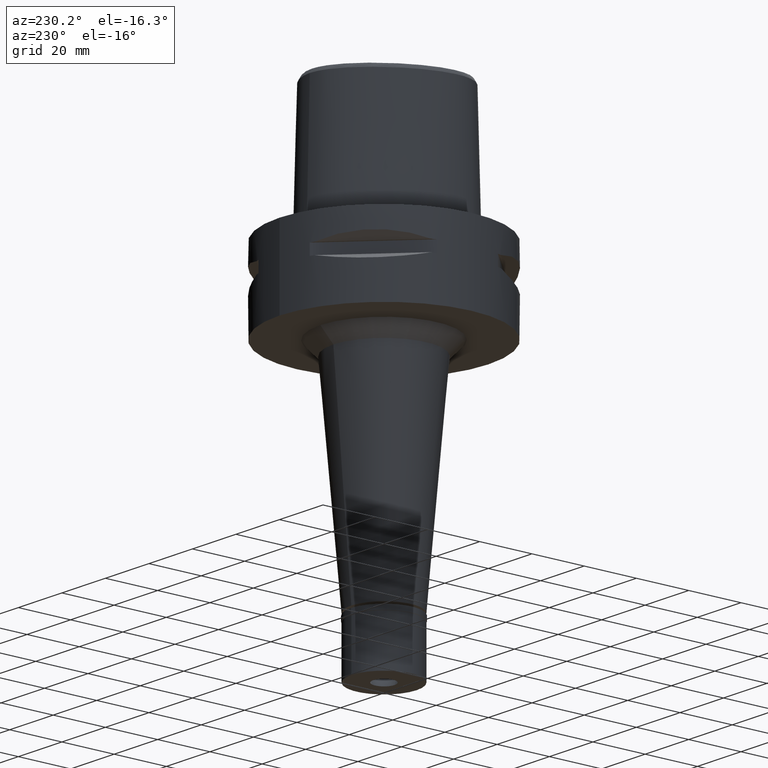
[diagram: clean part render]
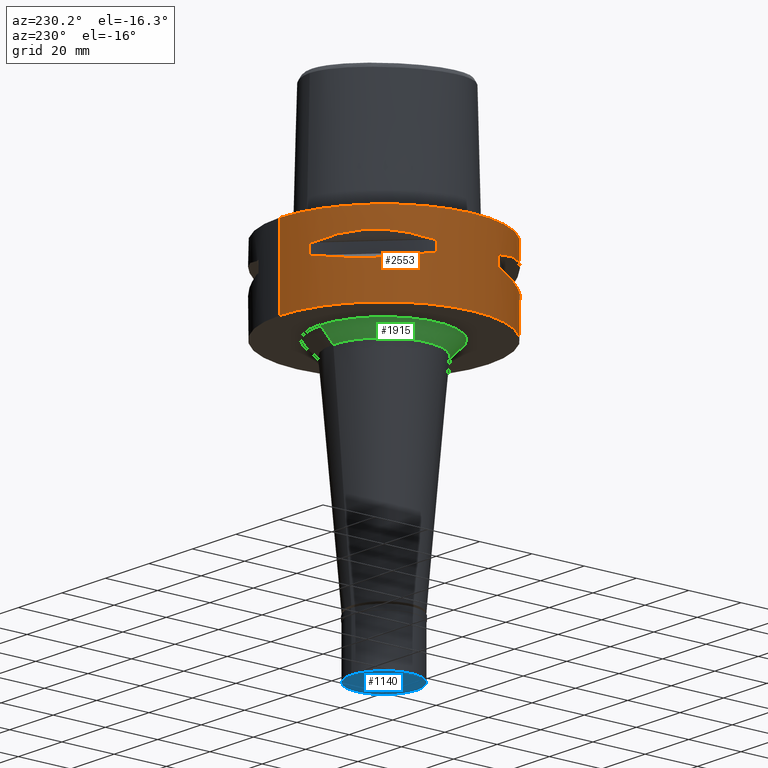
[diagram: same view with three faces highlighted in distinct colors, each labeled with its STEP entity id]
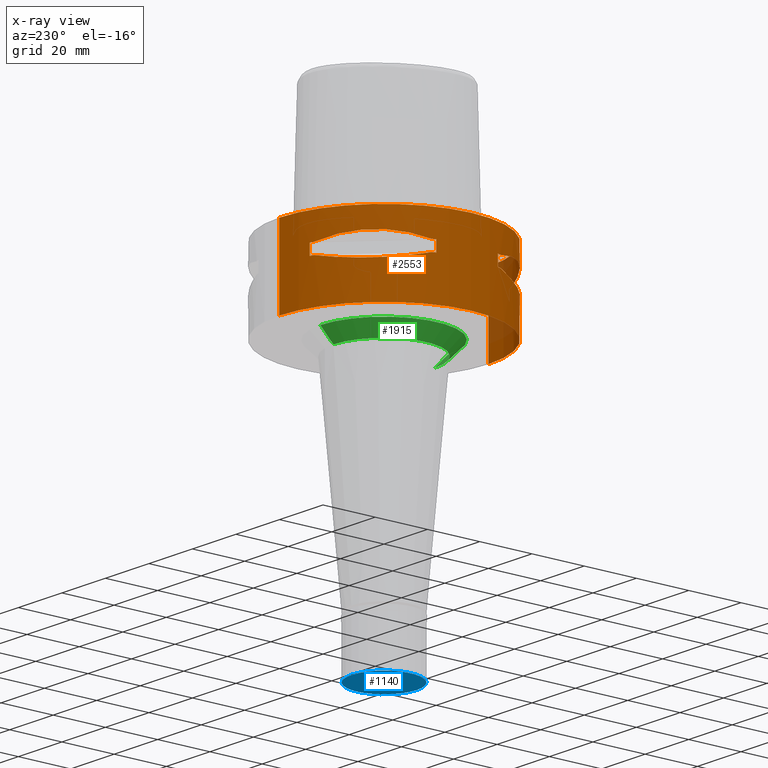
[diagram: x-ray of the same camera — body ghosted, the three highlighted faces saturated]
A machine part, auxiliary view with three faces highlighted in distinct colors.
The next image is the same camera in x-ray (body ghosted, the three faces saturated) — at least one of them is partly hidden behind the body in this view.
Their STEP definitions:

[orange] entity #2553 — the highlighted cylindrical surface (partial cylindrical patch) has radius 40 mm, axis along (0, 0, -1).
#49 = DIRECTION ( 'NONE',  ( -0.2940084000702865574, -0.9558028356769561196, 0.0000000000000000000 ) ) ;
#56 = CIRCLE ( 'NONE', #1045, 39.99999999999999289 ) ;
#128 = EDGE_CURVE ( 'NONE', #4820, #2496, #5047, .T. ) ;
#131 = CARTESIAN_POINT ( 'NONE',  ( -20.91613153242406398, 34.09685321779756606, -15.69507322892952139 ) ) ;
#181 = CARTESIAN_POINT ( 'NONE',  ( -21.40429668490322612, 33.79139713908578102, -15.76966389594729101 ) ) ;
#219 = EDGE_CURVE ( 'NONE', #2620, #2561, #2224, .T. ) ;
#231 = CARTESIAN_POINT ( 'NONE',  ( -36.74073341982093410, -16.10435486228974611, -9.189966798081965038 ) ) ;
#268 = CARTESIAN_POINT ( 'NONE',  ( -34.44518065739791268, -20.34261333236362645, -15.60313948594344780 ) ) ;
#286 = EDGE_CURVE ( 'NONE', #2620, #471, #3312, .T. ) ;
#378 = VECTOR ( 'NONE', #3371, 1000.000000000000000 ) ;
#409 = EDGE_CURVE ( 'NONE', #2671, #2836, #56, .T. ) ;
#460 = CARTESIAN_POINT ( 'NONE',  ( -37.74622163926999718, 13.23717311056000057, -14.05000000000000071 ) ) ;
#467 = CARTESIAN_POINT ( 'NONE',  ( -11.76033600280999991, -38.23211342708000160, -14.05000000000000071 ) ) ;
#471 = VERTEX_POINT ( 'NONE', #2529 ) ;
#478 = ORIENTED_EDGE ( 'NONE', *, *, #128, .F. ) ;
#486 = CARTESIAN_POINT ( 'NONE',  ( -38.23211342708000160, 11.76033600280999991, -14.05000000000000071 ) ) ;
#535 = CARTESIAN_POINT ( 'NONE',  ( -21.46607685731531490, 33.75216276490056089, -15.77886817953056564 ) ) ;
#544 = DIRECTION ( 'NONE',  ( 0.0000000000000000000, 0.0000000000000000000, 1.000000000000000000 ) ) ;
#563 = CARTESIAN_POINT ( 'NONE',  ( -33.56701934068217952, 21.75464223249340634, -15.82109001420632310 ) ) ;
#572 = CARTESIAN_POINT ( 'NONE',  ( -33.91944728533206188, -21.20128033780140697, -15.73905907260549064 ) ) ;
#584 = CARTESIAN_POINT ( 'NONE',  ( -38.23211342708000160, 11.76033600280999991, -9.950000000000001066 ) ) ;
#632 = VECTOR ( 'NONE', #4646, 1000.000000000000000 ) ;
#646 = CARTESIAN_POINT ( 'NONE',  ( -35.11589783529782949, -19.18269457495653185, -15.40342377741739988 ) ) ;
#656 = B_SPLINE_CURVE_WITH_KNOTS ( 'NONE', 3,
 ( #3440, #231, #5039, #1501, #3028, #3050, #1895, #4691, #2583, #1790 ),
 .UNSPECIFIED., .F., .F.,
 ( 4, 2, 2, 2, 4 ),
 ( 0.0000000000000000000, 0.2500000000000000000, 0.5000000000000000000, 0.7500000000000000000, 1.000000000000000000 ),
 .UNSPECIFIED. ) ;
#668 = CARTESIAN_POINT ( 'NONE',  ( -16.14402792110914930, -36.72682052670094777, -14.82054974552934468 ) ) ;
#677 = ORIENTED_EDGE ( 'NONE', *, *, #3827, .F. ) ;
#691 = DIRECTION ( 'NONE',  ( 0.0000000000000000000, 0.0000000000000000000, -1.000000000000000000 ) ) ;
#700 = VERTEX_POINT ( 'NONE', #2208 ) ;
#710 = CARTESIAN_POINT ( 'NONE',  ( 0.0000000000000000000, 1.303514053011999969E-14, -14.05000000000000071 ) ) ;
#724 = CARTESIAN_POINT ( 'NONE',  ( 0.0000000000000000000, 1.303514053011999969E-14, -14.05000000000000071 ) ) ;
#735 = DIRECTION ( 'NONE',  ( 0.0000000000000000000, 0.0000000000000000000, 1.000000000000000000 ) ) ;
#747 = CARTESIAN_POINT ( 'NONE',  ( -18.89342208872277595, -35.39137327286401558, -15.39779115588540925 ) ) ;
#758 = VERTEX_POINT ( 'NONE', #1614 ) ;
#761 = EDGE_CURVE ( 'NONE', #758, #3747, #2645, .T. ) ;
#792 = AXIS2_PLACEMENT_3D ( 'NONE', #4313, #735, #2338 ) ;
#832 = ORIENTED_EDGE ( 'NONE', *, *, #3941, .T. ) ;
#845 = CARTESIAN_POINT ( 'NONE',  ( -25.62819065485258463, -30.77249687755037399, -16.26160051742709101 ) ) ;
#852 = DIRECTION ( 'NONE',  ( -0.3309293277639132058, -0.9436555409818374596, 0.0000000000000000000 ) ) ;
#899 = CARTESIAN_POINT ( 'NONE',  ( -11.76033600280999991, -38.23211342708000160, -9.950000000000001066 ) ) ;
#925 = CARTESIAN_POINT ( 'NONE',  ( 0.0000000000000000000, 1.303514053011999969E-14, 0.0000000000000000000 ) ) ;
#926 = B_SPLINE_CURVE_WITH_KNOTS ( 'NONE', 3,
 ( #4459, #4493, #3704, #1721, #2533, #131, #1329, #2509, #181, #4520, #535, #4045, #1745, #3343, #4938, #4543, #949, #4147, #563, #1771, #3367, #1376, #3267, #2974, #4571, #460 ),
 .UNSPECIFIED., .F., .F.,
 ( 4, 1, 1, 1, 1, 1, 1, 2, 2, 2, 1, 1, 1, 1, 1, 1, 2, 2, 4 ),
 ( 0.0000000000000000000, 0.1250000000000191513, 0.1875000000000286160, 0.2187500000000333344, 0.2343750000000358602, 0.2421875000000370537, 0.2460937500000373590, 0.2480468750000373868, 0.2500000000000374145, 0.5000000000000354161, 0.6250000000000345279, 0.6875000000000339728, 0.7187500000000336398, 0.7343750000000335287, 0.7421875000000334177, 0.7460937500000334177, 0.7480468750000331957, 0.7500000000000330846, 1.000000000000000000 ),
 .UNSPECIFIED. ) ;
#949 = CARTESIAN_POINT ( 'NONE',  ( -33.03835700910098438, 22.55421454657008340, -15.93168855142969598 ) ) ;
#977 = EDGE_LOOP ( 'NONE', ( #5075, #677, #4575, #1574, #1623, #4554, #2614, #3524 ) ) ;
#980 = CARTESIAN_POINT ( 'NONE',  ( -11.76033600280999991, 38.23211342708000160, -14.05000000000000071 ) ) ;
#983 = CARTESIAN_POINT ( 'NONE',  ( -33.76566745674986691, -21.44484052678344455, -15.77571175125594394 ) ) ;
#1034 = CARTESIAN_POINT ( 'NONE',  ( -36.35358138588213706, -16.81132763103370209, -14.94059947015962386 ) ) ;
#1045 = AXIS2_PLACEMENT_3D ( 'NONE', #1322, #2157, #3748 ) ;
#1076 = CARTESIAN_POINT ( 'NONE',  ( 0.0000000000000000000, 1.303514053011999969E-14, 6.440000000000000391 ) ) ;
#1087 = ORIENTED_EDGE ( 'NONE', *, *, #3386, .T. ) ;
#1096 = LINE ( 'NONE', #3873, #1633 ) ;
#1141 = CARTESIAN_POINT ( 'NONE',  ( -32.16767032366980317, -23.95303639242290217, -16.14729882780574499 ) ) ;
#1160 = B_SPLINE_CURVE_WITH_KNOTS ( 'NONE', 3,
 ( #1488, #2663, #3087, #4583, #4680, #2203, #3843, #3892, #1859, #4611 ),
 .UNSPECIFIED., .F., .F.,
 ( 4, 2, 2, 2, 4 ),
 ( 0.0000000000000000000, 0.2500000000000001110, 0.5000000000000002220, 0.7500000000000001110, 1.000000000000000000 ),
 .UNSPECIFIED. ) ;
#1162 = CIRCLE ( 'NONE', #4510, 40.00000000000000000 ) ;
#1321 = ORIENTED_EDGE ( 'NONE', *, *, #4689, .T. ) ;
#1322 = CARTESIAN_POINT ( 'NONE',  ( 0.0000000000000000000, 1.303514053011999969E-14, -9.950000000000001066 ) ) ;
#1329 = CARTESIAN_POINT ( 'NONE',  ( -21.20128033779905863, 33.91944728533289322, -15.73905907260483872 ) ) ;
#1359 = CARTESIAN_POINT ( 'NONE',  ( 0.0000000000000000000, 40.00000000000000000, 0.0000000000000000000 ) ) ;
#1369 = VERTEX_POINT ( 'NONE', #3679 ) ;
#1376 = CARTESIAN_POINT ( 'NONE',  ( -33.71529052282350136, 21.52391145898932123, -15.78742602700011410 ) ) ;
#1385 = CARTESIAN_POINT ( 'NONE',  ( -33.82993376593436352, -21.34345216682292090, -15.76055673748811792 ) ) ;
#1407 = AXIS2_PLACEMENT_3D ( 'NONE', #710, #2651, #5113 ) ;
#1452 = CARTESIAN_POINT ( 'NONE',  ( -13.23717311056000057, -37.74622163926999718, -14.05000000000000071 ) ) ;
#1483 = DIRECTION ( 'NONE',  ( -0.3309293277639132058, 0.9436555409818374596, 0.0000000000000000000 ) ) ;
#1488 = CARTESIAN_POINT ( 'NONE',  ( -13.23717311056000057, 37.74622163926999718, -9.950000000002001244 ) ) ;
#1501 = CARTESIAN_POINT ( 'NONE',  ( -32.22577213857958611, -23.88355431037092913, -7.859897272571259919 ) ) ;
#1510 = ORIENTED_EDGE ( 'NONE', *, *, #2187, .T. ) ;
#1553 = DIRECTION ( 'NONE',  ( 0.0000000000000000000, 0.0000000000000000000, -1.000000000000000000 ) ) ;
#1574 = ORIENTED_EDGE ( 'NONE', *, *, #219, .F. ) ;
#1614 = CARTESIAN_POINT ( 'NONE',  ( -13.23717311056000057, -37.74622163926999718, -9.950000000002001244 ) ) ;
#1623 = ORIENTED_EDGE ( 'NONE', *, *, #286, .T. ) ;
#1624 = EDGE_CURVE ( 'NONE', #2671, #471, #3125, .T. ) ;
#1633 = VECTOR ( 'NONE', #4287, 1000.000000000000000 ) ;
#1669 = CARTESIAN_POINT ( 'NONE',  ( -30.34851826271897224, -26.21995747454407422, -16.33009976522122741 ) ) ;
#1690 = ORIENTED_EDGE ( 'NONE', *, *, #2243, .F. ) ;
#1721 = CARTESIAN_POINT ( 'NONE',  ( -19.18269457494219310, 35.11589783530285303, -15.40342377741356117 ) ) ;
#1745 = CARTESIAN_POINT ( 'NONE',  ( -26.21995747455951431, 30.34851826269486708, -16.33009976521767115 ) ) ;
#1771 = CARTESIAN_POINT ( 'NONE',  ( -33.65365962422809787, 21.62017158009728846, -15.80156334789097095 ) ) ;
#1790 = CARTESIAN_POINT ( 'NONE',  ( -13.23717311056000057, -37.74622163926999718, -9.950000000002001244 ) ) ;
#1800 = DIRECTION ( 'NONE',  ( 0.0000000000000000000, 0.0000000000000000000, -1.000000000000000000 ) ) ;
#1847 = FACE_BOUND ( 'NONE', #4700, .T. ) ;
#1859 = CARTESIAN_POINT ( 'NONE',  ( -36.74070924257178206, 16.10442380448742838, -9.189948522868261804 ) ) ;
#1888 = ORIENTED_EDGE ( 'NONE', *, *, #2905, .T. ) ;
#1895 = CARTESIAN_POINT ( 'NONE',  ( -23.88364259920621890, -32.22570670470194187, -7.859869859750706844 ) ) ;
#1924 = CARTESIAN_POINT ( 'NONE',  ( 0.0000000000000000000, 1.303514053011999969E-14, -14.05000000000000071 ) ) ;
#1932 = CARTESIAN_POINT ( 'NONE',  ( -21.62017158009599527, -33.65365962422892210, -15.80156334789078265 ) ) ;
#2013 = ORIENTED_EDGE ( 'NONE', *, *, #2943, .T. ) ;
#2065 = VERTEX_POINT ( 'NONE', #3247 ) ;
#2134 = AXIS2_PLACEMENT_3D ( 'NONE', #2909, #4547, #4497 ) ;
#2136 = DIRECTION ( 'NONE',  ( 0.0000000000000000000, 0.0000000000000000000, -1.000000000000000000 ) ) ;
#2157 = DIRECTION ( 'NONE',  ( 0.0000000000000000000, 0.0000000000000000000, 1.000000000000000000 ) ) ;
#2177 = DIRECTION ( 'NONE',  ( 0.0000000000000000000, 0.0000000000000000000, 1.000000000000000000 ) ) ;
#2187 = EDGE_CURVE ( 'NONE', #2879, #4601, #3062, .T. ) ;
#2203 = CARTESIAN_POINT ( 'NONE',  ( -30.36058330527164983, 26.20795918965216842, -7.669863843587160446 ) ) ;
#2208 = CARTESIAN_POINT ( 'NONE',  ( -13.23717311056000057, 37.74622163926999718, -9.950000000002001244 ) ) ;
#2211 = FACE_OUTER_BOUND ( 'NONE', #2831, .T. ) ;
#2224 = B_SPLINE_CURVE_WITH_KNOTS ( 'NONE', 3,
 ( #3839, #3376, #1034, #646, #268, #2568, #572, #1385, #4581, #983, #4183, #1141, #1669, #3262, #845, #2744, #5120, #3497, #3887, #1932, #3131, #2295, #2353, #747, #668, #4326 ),
 .UNSPECIFIED., .F., .F.,
 ( 4, 1, 1, 1, 1, 1, 1, 2, 2, 2, 1, 1, 1, 1, 1, 1, 2, 2, 4 ),
 ( 0.0000000000000000000, 0.1249999999999758526, 0.1874999999999638900, 0.2187499999999580058, 0.2343749999999549805, 0.2421874999999535649, 0.2460937499999528988, 0.2480468749999527323, 0.2499999999999525380, 0.4999999999999500400, 0.6249999999999488187, 0.6874999999999481526, 0.7187499999999477085, 0.7343749999999477085, 0.7421874999999478195, 0.7460937499999479305, 0.7480468749999480416, 0.7499999999999482636, 1.000000000000000000 ),
 .UNSPECIFIED. ) ;
#2243 = EDGE_CURVE ( 'NONE', #3107, #1369, #4782, .T. ) ;
#2247 = LINE ( 'NONE', #1359, #3260 ) ;
#2295 = CARTESIAN_POINT ( 'NONE',  ( -21.52391145898895886, -33.71529052282375005, -15.78742602700008035 ) ) ;
#2338 = DIRECTION ( 'NONE',  ( 0.0000000000000000000, 1.000000000000000000, 0.0000000000000000000 ) ) ;
#2353 = CARTESIAN_POINT ( 'NONE',  ( -21.50560509406269460, -33.72697758561022852, -15.78472370821745407 ) ) ;
#2364 = EDGE_CURVE ( 'NONE', #2879, #4785, #926, .T. ) ;
#2478 = AXIS2_PLACEMENT_3D ( 'NONE', #1076, #4221, #4245 ) ;
#2496 = VERTEX_POINT ( 'NONE', #584 ) ;
#2509 = CARTESIAN_POINT ( 'NONE',  ( -21.34345216682169877, 33.82993376593478985, -15.76055673748776798 ) ) ;
#2529 = CARTESIAN_POINT ( 'NONE',  ( -38.23211342708000160, -11.76033600280999991, -14.05000000000000071 ) ) ;
#2532 = DIRECTION ( 'NONE',  ( 0.0000000000000000000, -1.000000000000000000, 0.0000000000000000000 ) ) ;
#2533 = CARTESIAN_POINT ( 'NONE',  ( -20.34261333235522784, 34.44518065740082591, -15.60313948594118116 ) ) ;
#2553 = ADVANCED_FACE ( 'NONE', ( #2211, #1847, #4173 ), #3800, .T. ) ;
#2561 = VERTEX_POINT ( 'NONE', #1452 ) ;
#2568 = CARTESIAN_POINT ( 'NONE',  ( -34.09685321779600997, -20.91613153242858658, -15.69507322893076662 ) ) ;
#2583 = CARTESIAN_POINT ( 'NONE',  ( -16.10442380448739286, -36.74070924257178916, -9.189948522868265357 ) ) ;
#2614 = ORIENTED_EDGE ( 'NONE', *, *, #409, .T. ) ;
#2620 = VERTEX_POINT ( 'NONE', #3829 ) ;
#2624 = EDGE_CURVE ( 'NONE', #2836, #758, #656, .T. ) ;
#2645 = CIRCLE ( 'NONE', #3069, 39.99999999999997868 ) ;
#2651 = DIRECTION ( 'NONE',  ( 0.0000000000000000000, 0.0000000000000000000, -1.000000000000000000 ) ) ;
#2663 = CARTESIAN_POINT ( 'NONE',  ( -16.10435486228978874, 36.74073341982094831, -9.189966798081963262 ) ) ;
#2671 = VERTEX_POINT ( 'NONE', #3853 ) ;
#2722 = VECTOR ( 'NONE', #544, 1000.000000000000000 ) ;
#2736 = EDGE_CURVE ( 'NONE', #4546, #2561, #2977, .T. ) ;
#2744 = CARTESIAN_POINT ( 'NONE',  ( -23.60097336452268024, -32.30995221952120744, -16.06165603927522056 ) ) ;
#2762 = CARTESIAN_POINT ( 'NONE',  ( -37.74622163926999718, -13.23717311056000057, -9.950000000002001244 ) ) ;
#2831 = EDGE_LOOP ( 'NONE', ( #832, #1690, #3765, #1321 ) ) ;
#2836 = VERTEX_POINT ( 'NONE', #2762 ) ;
#2841 = CARTESIAN_POINT ( 'NONE',  ( 0.0000000000000000000, 1.303514053011999969E-14, -9.950000000000001066 ) ) ;
#2879 = VERTEX_POINT ( 'NONE', #4431 ) ;
#2905 = EDGE_CURVE ( 'NONE', #2065, #2496, #3128, .T. ) ;
#2909 = CARTESIAN_POINT ( 'NONE',  ( 0.0000000000000000000, 1.303514053011999969E-14, -9.950000000000001066 ) ) ;
#2930 = CARTESIAN_POINT ( 'NONE',  ( -11.76033600280999991, 38.23211342708000160, -9.950000000000001066 ) ) ;
#2943 = EDGE_CURVE ( 'NONE', #700, #2065, #1160, .T. ) ;
#2974 = CARTESIAN_POINT ( 'NONE',  ( -35.39137327286383794, 18.89342208872325202, -15.39779115588552827 ) ) ;
#2977 = CIRCLE ( 'NONE', #3472, 39.99999999999999289 ) ;
#3028 = CARTESIAN_POINT ( 'NONE',  ( -30.36058330527162852, -26.20795918965216131, -7.669882118573520202 ) ) ;
#3050 = CARTESIAN_POINT ( 'NONE',  ( -26.20795918965215776, -30.36058330527162852, -7.669863843587160446 ) ) ;
#3062 = CIRCLE ( 'NONE', #3728, 39.99999999999997868 ) ;
#3069 = AXIS2_PLACEMENT_3D ( 'NONE', #4866, #3602, #852 ) ;
#3087 = CARTESIAN_POINT ( 'NONE',  ( -18.83173199174708046, 35.41596287855381320, -8.619939612211812374 ) ) ;
#3093 = VERTEX_POINT ( 'NONE', #4386 ) ;
#3107 = VERTEX_POINT ( 'NONE', #3110 ) ;
#3110 = CARTESIAN_POINT ( 'NONE',  ( 0.0000000000000000000, -40.00000000000000000, 0.0000000000000000000 ) ) ;
#3125 = LINE ( 'NONE', #4196, #632 ) ;
#3128 = CIRCLE ( 'NONE', #3806, 39.99999999999997868 ) ;
#3131 = CARTESIAN_POINT ( 'NONE',  ( -21.56243030661606852, -33.69065616467215563, -15.79309434609241869 ) ) ;
#3159 = DIRECTION ( 'NONE',  ( -0.9436555409818374596, -0.3309293277639132058, 0.0000000000000000000 ) ) ;
#3247 = CARTESIAN_POINT ( 'NONE',  ( -37.74622163926999718, 13.23717311056000057, -9.950000000002001244 ) ) ;
#3260 = VECTOR ( 'NONE', #1800, 1000.000000000000000 ) ;
#3262 = CARTESIAN_POINT ( 'NONE',  ( -27.25214773983183036, -29.31642813391925273, -16.33014064577127655 ) ) ;
#3267 = CARTESIAN_POINT ( 'NONE',  ( -33.72697758561022852, 21.50560509406268750, -15.78472370821743276 ) ) ;
#3306 = CIRCLE ( 'NONE', #2134, 39.99999999999999289 ) ;
#3312 = CIRCLE ( 'NONE', #3638, 39.99999999999997868 ) ;
#3343 = CARTESIAN_POINT ( 'NONE',  ( -29.31642813391150426, 27.25214773984385630, -16.33014064577301028 ) ) ;
#3367 = CARTESIAN_POINT ( 'NONE',  ( -33.69065616467168667, 21.56243030661679327, -15.79309434609251639 ) ) ;
#3371 = DIRECTION ( 'NONE',  ( 0.0000000000000000000, 0.0000000000000000000, -1.000000000000000000 ) ) ;
#3376 = CARTESIAN_POINT ( 'NONE',  ( -37.23659447744208251, -14.69039122919928531, -14.43521939501465035 ) ) ;
#3386 = EDGE_CURVE ( 'NONE', #4421, #700, #3306, .T. ) ;
#3399 = CARTESIAN_POINT ( 'NONE',  ( 0.0000000000000000000, 1.303514053011999969E-14, -14.05000000000000071 ) ) ;
#3440 = CARTESIAN_POINT ( 'NONE',  ( -37.74622163926999718, -13.23717311056000057, -9.950000000002001244 ) ) ;
#3472 = AXIS2_PLACEMENT_3D ( 'NONE', #1924, #1553, #49 ) ;
#3497 = CARTESIAN_POINT ( 'NONE',  ( -22.02254759438074316, -33.39247868354982529, -15.85920599531222308 ) ) ;
#3524 = ORIENTED_EDGE ( 'NONE', *, *, #2624, .T. ) ;
#3545 = DIRECTION ( 'NONE',  ( 0.0000000000000000000, 0.0000000000000000000, -1.000000000000000000 ) ) ;
#3557 = EDGE_CURVE ( 'NONE', #4421, #4601, #4602, .T. ) ;
#3560 = VECTOR ( 'NONE', #3545, 1000.000000000000000 ) ;
#3602 = DIRECTION ( 'NONE',  ( 0.0000000000000000000, 0.0000000000000000000, 1.000000000000000000 ) ) ;
#3638 = AXIS2_PLACEMENT_3D ( 'NONE', #724, #691, #3159 ) ;
#3668 = CIRCLE ( 'NONE', #1407, 39.99999999999999289 ) ;
#3679 = CARTESIAN_POINT ( 'NONE',  ( 0.0000000000000000000, -40.00000000000000000, -30.00000000000000000 ) ) ;
#3689 = CARTESIAN_POINT ( 'NONE',  ( 0.0000000000000000000, 40.00000000000000000, 0.0000000000000000000 ) ) ;
#3704 = CARTESIAN_POINT ( 'NONE',  ( -16.81132763101458849, 36.35358138588883037, -14.94059947015453105 ) ) ;
#3728 = AXIS2_PLACEMENT_3D ( 'NONE', #3399, #4998, #1483 ) ;
#3741 = CARTESIAN_POINT ( 'NONE',  ( -38.23211342708000160, 11.76033600280999991, -14.05000000000000071 ) ) ;
#3747 = VERTEX_POINT ( 'NONE', #899 ) ;
#3748 = DIRECTION ( 'NONE',  ( -0.9558028356769561196, -0.2940084000702865574, 0.0000000000000000000 ) ) ;
#3765 = ORIENTED_EDGE ( 'NONE', *, *, #4956, .T. ) ;
#3800 = CYLINDRICAL_SURFACE ( 'NONE', #2478, 40.00000000000000000 ) ;
#3806 = AXIS2_PLACEMENT_3D ( 'NONE', #2841, #2177, #4477 ) ;
#3827 = EDGE_CURVE ( 'NONE', #4546, #3747, #1096, .T. ) ;
#3829 = CARTESIAN_POINT ( 'NONE',  ( -37.74622163926999718, -13.23717311056000057, -14.05000000000000071 ) ) ;
#3833 = ORIENTED_EDGE ( 'NONE', *, *, #3557, .F. ) ;
#3839 = CARTESIAN_POINT ( 'NONE',  ( -37.74622163926999718, -13.23717311056000057, -14.05000000000000071 ) ) ;
#3843 = CARTESIAN_POINT ( 'NONE',  ( -32.22570670470196319, 23.88364259920621890, -7.859869859750705068 ) ) ;
#3853 = CARTESIAN_POINT ( 'NONE',  ( -38.23211342708000160, -11.76033600280999991, -9.950000000000001066 ) ) ;
#3873 = CARTESIAN_POINT ( 'NONE',  ( -11.76033600280999991, -38.23211342708000160, -14.05000000000000071 ) ) ;
#3887 = CARTESIAN_POINT ( 'NONE',  ( -21.75464223249087681, -33.56701934068381377, -15.82109001420596606 ) ) ;
#3892 = CARTESIAN_POINT ( 'NONE',  ( -35.41591128513821474, 18.83182902076458731, -8.619912199391256635 ) ) ;
#3941 = EDGE_CURVE ( 'NONE', #3093, #1369, #5139, .T. ) ;
#4044 = CARTESIAN_POINT ( 'NONE',  ( -37.74622163926999718, 13.23717311056000057, -14.05000000000000071 ) ) ;
#4045 = CARTESIAN_POINT ( 'NONE',  ( -23.95303639238277782, 32.16767032370128732, -16.14729882780219228 ) ) ;
#4147 = CARTESIAN_POINT ( 'NONE',  ( -33.39247868354666338, 22.02254759438567788, -15.85920599531292652 ) ) ;
#4173 = FACE_BOUND ( 'NONE', #977, .T. ) ;
#4183 = CARTESIAN_POINT ( 'NONE',  ( -33.75216276490080247, -21.46607685731505555, -15.77886817953058696 ) ) ;
#4196 = CARTESIAN_POINT ( 'NONE',  ( -38.23211342708000160, -11.76033600280999991, -9.950000000000001066 ) ) ;
#4221 = DIRECTION ( 'NONE',  ( 0.0000000000000000000, 0.0000000000000000000, -1.000000000000000000 ) ) ;
#4245 = DIRECTION ( 'NONE',  ( 0.0000000000000000000, -1.000000000000000000, 0.0000000000000000000 ) ) ;
#4287 = DIRECTION ( 'NONE',  ( 0.0000000000000000000, 0.0000000000000000000, 1.000000000000000000 ) ) ;
#4313 = CARTESIAN_POINT ( 'NONE',  ( 0.0000000000000000000, 1.303514053011999969E-14, -30.00000000000000000 ) ) ;
#4317 = CARTESIAN_POINT ( 'NONE',  ( -11.76033600280999991, 38.23211342708000160, -9.950000000000001066 ) ) ;
#4326 = CARTESIAN_POINT ( 'NONE',  ( -13.23717311056000057, -37.74622163926999718, -14.05000000000000071 ) ) ;
#4386 = CARTESIAN_POINT ( 'NONE',  ( 0.0000000000000000000, 40.00000000000000000, -30.00000000000000000 ) ) ;
#4421 = VERTEX_POINT ( 'NONE', #2930 ) ;
#4431 = CARTESIAN_POINT ( 'NONE',  ( -13.23717311056000057, 37.74622163926999718, -14.05000000000000071 ) ) ;
#4439 = ORIENTED_EDGE ( 'NONE', *, *, #5121, .T. ) ;
#4459 = CARTESIAN_POINT ( 'NONE',  ( -13.23717311056000057, 37.74622163926999718, -14.05000000000000071 ) ) ;
#4477 = DIRECTION ( 'NONE',  ( -0.9436555409818374596, 0.3309293277639132058, 0.0000000000000000000 ) ) ;
#4493 = CARTESIAN_POINT ( 'NONE',  ( -14.69039122918836426, 37.23659447744591233, -14.43521939501172469 ) ) ;
#4497 = DIRECTION ( 'NONE',  ( -0.2940084000702865574, 0.9558028356769561196, 0.0000000000000000000 ) ) ;
#4510 = AXIS2_PLACEMENT_3D ( 'NONE', #925, #2136, #2532 ) ;
#4520 = CARTESIAN_POINT ( 'NONE',  ( -21.44484052678305730, 33.76566745674997350, -15.77571175125580893 ) ) ;
#4543 = CARTESIAN_POINT ( 'NONE',  ( -32.30995221951103247, 23.60097336453846850, -16.06165603927749785 ) ) ;
#4546 = VERTEX_POINT ( 'NONE', #467 ) ;
#4547 = DIRECTION ( 'NONE',  ( 0.0000000000000000000, 0.0000000000000000000, 1.000000000000000000 ) ) ;
#4554 = ORIENTED_EDGE ( 'NONE', *, *, #1624, .F. ) ;
#4571 = CARTESIAN_POINT ( 'NONE',  ( -36.72682052670077013, 16.14402792110960050, -14.82054974552945303 ) ) ;
#4575 = ORIENTED_EDGE ( 'NONE', *, *, #2736, .T. ) ;
#4581 = CARTESIAN_POINT ( 'NONE',  ( -33.79139713908553944, -21.40429668490394732, -15.76966389594752016 ) ) ;
#4582 = VERTEX_POINT ( 'NONE', #3689 ) ;
#4583 = CARTESIAN_POINT ( 'NONE',  ( -23.88355431037097887, 32.22577213857957901, -7.859897272571263471 ) ) ;
#4601 = VERTEX_POINT ( 'NONE', #980 ) ;
#4602 = LINE ( 'NONE', #4317, #378 ) ;
#4611 = CARTESIAN_POINT ( 'NONE',  ( -37.74622163926999718, 13.23717311056000057, -9.950000000002001244 ) ) ;
#4646 = DIRECTION ( 'NONE',  ( 0.0000000000000000000, 0.0000000000000000000, -1.000000000000000000 ) ) ;
#4680 = CARTESIAN_POINT ( 'NONE',  ( -26.20795918965216131, 30.36058330527165694, -7.669882118573521090 ) ) ;
#4689 = EDGE_CURVE ( 'NONE', #4582, #3093, #2247, .T. ) ;
#4691 = CARTESIAN_POINT ( 'NONE',  ( -18.83182902076456955, -35.41591128513820763, -8.619912199391258412 ) ) ;
#4700 = EDGE_LOOP ( 'NONE', ( #1888, #478, #4439, #4874, #1510, #3833, #1087, #2013 ) ) ;
#4755 = CARTESIAN_POINT ( 'NONE',  ( 0.0000000000000000000, -40.00000000000000000, 0.0000000000000000000 ) ) ;
#4782 = LINE ( 'NONE', #4755, #3560 ) ;
#4785 = VERTEX_POINT ( 'NONE', #4044 ) ;
#4820 = VERTEX_POINT ( 'NONE', #486 ) ;
#4866 = CARTESIAN_POINT ( 'NONE',  ( 0.0000000000000000000, 1.303514053011999969E-14, -9.950000000000001066 ) ) ;
#4874 = ORIENTED_EDGE ( 'NONE', *, *, #2364, .F. ) ;
#4938 = CARTESIAN_POINT ( 'NONE',  ( -30.77249687753683105, 25.62819065487364512, -16.26160051743014279 ) ) ;
#4956 = EDGE_CURVE ( 'NONE', #3107, #4582, #1162, .T. ) ;
#4998 = DIRECTION ( 'NONE',  ( 0.0000000000000000000, 0.0000000000000000000, -1.000000000000000000 ) ) ;
#5039 = CARTESIAN_POINT ( 'NONE',  ( -35.41596287855382030, -18.83173199174702717, -8.619939612211814151 ) ) ;
#5047 = LINE ( 'NONE', #3741, #2722 ) ;
#5075 = ORIENTED_EDGE ( 'NONE', *, *, #761, .T. ) ;
#5113 = DIRECTION ( 'NONE',  ( -0.9558028356769561196, 0.2940084000702865574, 0.0000000000000000000 ) ) ;
#5120 = CARTESIAN_POINT ( 'NONE',  ( -22.55421454656086766, -33.03835700910691031, -15.93168855142837081 ) ) ;
#5121 = EDGE_CURVE ( 'NONE', #4820, #4785, #3668, .T. ) ;
#5139 = CIRCLE ( 'NONE', #792, 40.00000000000000000 ) ;

[blue] entity #1140 — the highlighted planar face has unit normal (0, 0, -1).
#64 = AXIS2_PLACEMENT_3D ( 'NONE', #2398, #1952, #3993 ) ;
#76 = DIRECTION ( 'NONE',  ( 0.0000000000000000000, 0.0000000000000000000, 1.000000000000000000 ) ) ;
#362 = DIRECTION ( 'NONE',  ( 0.0000000000000000000, 0.0000000000000000000, -1.000000000000000000 ) ) ;
#419 = CARTESIAN_POINT ( 'NONE',  ( 0.0000000000000000000, 0.0000000000000000000, -20.50000000000000000 ) ) ;
#639 = VERTEX_POINT ( 'NONE', #2354 ) ;
#767 = DIRECTION ( 'NONE',  ( 0.0000000000000000000, -1.000000000000000000, 0.0000000000000000000 ) ) ;
#793 = CARTESIAN_POINT ( 'NONE',  ( 0.0000000000000000000, -4.050000000000999911, -20.50000000000000000 ) ) ;
#804 = AXIS2_PLACEMENT_3D ( 'NONE', #1982, #76, #767 ) ;
#820 = DIRECTION ( 'NONE',  ( 0.0000000000000000000, 1.000000000000000000, 0.0000000000000000000 ) ) ;
#827 = DIRECTION ( 'NONE',  ( 0.0000000000000000000, 0.0000000000000000000, -1.000000000000000000 ) ) ;
#1070 = AXIS2_PLACEMENT_3D ( 'NONE', #419, #827, #4499 ) ;
#1086 = VERTEX_POINT ( 'NONE', #793 ) ;
#1119 = ORIENTED_EDGE ( 'NONE', *, *, #2313, .F. ) ;
#1140 = ADVANCED_FACE ( 'NONE', ( #3940, #3596 ), #2765, .T. ) ;
#1163 = CARTESIAN_POINT ( 'NONE',  ( 0.0000000000000000000, 12.50000000000000000, -20.50000000000000000 ) ) ;
#1562 = CARTESIAN_POINT ( 'NONE',  ( 0.0000000000000000000, 0.0000000000000000000, -20.50000000000000000 ) ) ;
#1813 = EDGE_CURVE ( 'NONE', #3956, #2745, #4070, .T. ) ;
#1952 = DIRECTION ( 'NONE',  ( 0.0000000000000000000, 0.0000000000000000000, -1.000000000000000000 ) ) ;
#1976 = CIRCLE ( 'NONE', #2308, 12.50000000000000000 ) ;
#1982 = CARTESIAN_POINT ( 'NONE',  ( 0.0000000000000000000, 0.0000000000000000000, -20.50000000000000000 ) ) ;
#2109 = ORIENTED_EDGE ( 'NONE', *, *, #1813, .F. ) ;
#2182 = ORIENTED_EDGE ( 'NONE', *, *, #2251, .F. ) ;
#2251 = EDGE_CURVE ( 'NONE', #639, #1086, #2392, .T. ) ;
#2308 = AXIS2_PLACEMENT_3D ( 'NONE', #1562, #3185, #4382 ) ;
#2313 = EDGE_CURVE ( 'NONE', #2745, #3956, #1976, .T. ) ;
#2354 = CARTESIAN_POINT ( 'NONE',  ( 0.0000000000000000000, 4.050000000000999911, -20.50000000000000000 ) ) ;
#2392 = CIRCLE ( 'NONE', #4724, 4.050000000000999911 ) ;
#2398 = CARTESIAN_POINT ( 'NONE',  ( 0.0000000000000000000, 0.0000000000000000000, -20.50000000000000000 ) ) ;
#2622 = CARTESIAN_POINT ( 'NONE',  ( 0.0000000000000000000, -12.50000000000000000, -20.50000000000000000 ) ) ;
#2745 = VERTEX_POINT ( 'NONE', #1163 ) ;
#2765 = PLANE ( 'NONE',  #64 ) ;
#2979 = ORIENTED_EDGE ( 'NONE', *, *, #4487, .F. ) ;
#3129 = CARTESIAN_POINT ( 'NONE',  ( 0.0000000000000000000, 0.0000000000000000000, -20.50000000000000000 ) ) ;
#3185 = DIRECTION ( 'NONE',  ( 0.0000000000000000000, 0.0000000000000000000, 1.000000000000000000 ) ) ;
#3526 = EDGE_LOOP ( 'NONE', ( #2182, #2979 ) ) ;
#3596 = FACE_BOUND ( 'NONE', #3526, .T. ) ;
#3940 = FACE_OUTER_BOUND ( 'NONE', #4451, .T. ) ;
#3956 = VERTEX_POINT ( 'NONE', #2622 ) ;
#3993 = DIRECTION ( 'NONE',  ( 0.0000000000000000000, -1.000000000000000000, 0.0000000000000000000 ) ) ;
#4070 = CIRCLE ( 'NONE', #804, 12.50000000000000000 ) ;
#4382 = DIRECTION ( 'NONE',  ( 0.0000000000000000000, 1.000000000000000000, 0.0000000000000000000 ) ) ;
#4451 = EDGE_LOOP ( 'NONE', ( #1119, #2109 ) ) ;
#4487 = EDGE_CURVE ( 'NONE', #1086, #639, #5089, .T. ) ;
#4499 = DIRECTION ( 'NONE',  ( 0.0000000000000000000, -1.000000000000000000, 0.0000000000000000000 ) ) ;
#4724 = AXIS2_PLACEMENT_3D ( 'NONE', #3129, #362, #820 ) ;
#5089 = CIRCLE ( 'NONE', #1070, 4.050000000000999911 ) ;

[green] entity #1915 — the highlighted conical surface has half-angle 45 deg.
#54 = VECTOR ( 'NONE', #2863, 1000.000000000000000 ) ;
#58 = CARTESIAN_POINT ( 'NONE',  ( 0.0000000000000000000, 24.38535781949000025, -30.00000000000000000 ) ) ;
#375 = LINE ( 'NONE', #1544, #54 ) ;
#420 = CARTESIAN_POINT ( 'NONE',  ( 0.0000000000000000000, 0.0000000000000000000, -32.50000000000000000 ) ) ;
#473 = ORIENTED_EDGE ( 'NONE', *, *, #684, .F. ) ;
#579 = DIRECTION ( 'NONE',  ( 0.0000000000000000000, 0.0000000000000000000, -1.000000000000000000 ) ) ;
#599 = VERTEX_POINT ( 'NONE', #749 ) ;
#684 = EDGE_CURVE ( 'NONE', #3612, #599, #2810, .T. ) ;
#749 = CARTESIAN_POINT ( 'NONE',  ( 0.0000000000000000000, 19.38535781949000025, -35.00000000000000000 ) ) ;
#865 = ORIENTED_EDGE ( 'NONE', *, *, #5135, .T. ) ;
#892 = AXIS2_PLACEMENT_3D ( 'NONE', #420, #4816, #2800 ) ;
#1074 = AXIS2_PLACEMENT_3D ( 'NONE', #1475, #2679, #4269 ) ;
#1256 = CIRCLE ( 'NONE', #1074, 24.38535781949000025 ) ;
#1475 = CARTESIAN_POINT ( 'NONE',  ( 0.0000000000000000000, 0.0000000000000000000, -30.00000000000000000 ) ) ;
#1544 = CARTESIAN_POINT ( 'NONE',  ( 0.0000000000000000000, -24.38535781949000025, -30.00000000000000000 ) ) ;
#1658 = ORIENTED_EDGE ( 'NONE', *, *, #2476, .T. ) ;
#1881 = EDGE_LOOP ( 'NONE', ( #473, #3707, #865, #1658 ) ) ;
#1915 = ADVANCED_FACE ( 'NONE', ( #2435 ), #3149, .T. ) ;
#2435 = FACE_OUTER_BOUND ( 'NONE', #1881, .T. ) ;
#2476 = EDGE_CURVE ( 'NONE', #3450, #599, #5087, .T. ) ;
#2652 = DIRECTION ( 'NONE',  ( 0.0000000000000000000, -0.7071067811863476216, -0.7071067811867475239 ) ) ;
#2679 = DIRECTION ( 'NONE',  ( 0.0000000000000000000, 0.0000000000000000000, -1.000000000000000000 ) ) ;
#2800 = DIRECTION ( 'NONE',  ( 0.0000000000000000000, 1.000000000000000000, 0.0000000000000000000 ) ) ;
#2810 = CIRCLE ( 'NONE', #3471, 19.38535781949000025 ) ;
#2863 = DIRECTION ( 'NONE',  ( 0.0000000000000000000, 0.7071067811863476216, -0.7071067811867475239 ) ) ;
#2898 = VECTOR ( 'NONE', #2652, 1000.000000000000000 ) ;
#3047 = CARTESIAN_POINT ( 'NONE',  ( 0.0000000000000000000, -24.38535781949000025, -30.00000000000000000 ) ) ;
#3149 = CONICAL_SURFACE ( 'NONE', #892, 21.88535781949000025, 0.7853981633972997312 ) ;
#3361 = CARTESIAN_POINT ( 'NONE',  ( 0.0000000000000000000, 0.0000000000000000000, -35.00000000000000000 ) ) ;
#3412 = DIRECTION ( 'NONE',  ( 0.0000000000000000000, -1.000000000000000000, 0.0000000000000000000 ) ) ;
#3450 = VERTEX_POINT ( 'NONE', #58 ) ;
#3471 = AXIS2_PLACEMENT_3D ( 'NONE', #3361, #579, #3412 ) ;
#3612 = VERTEX_POINT ( 'NONE', #3758 ) ;
#3707 = ORIENTED_EDGE ( 'NONE', *, *, #4043, .F. ) ;
#3758 = CARTESIAN_POINT ( 'NONE',  ( 0.0000000000000000000, -19.38535781949000025, -35.00000000000000000 ) ) ;
#3777 = CARTESIAN_POINT ( 'NONE',  ( 0.0000000000000000000, 24.38535781949000025, -30.00000000000000000 ) ) ;
#3863 = VERTEX_POINT ( 'NONE', #3047 ) ;
#4043 = EDGE_CURVE ( 'NONE', #3863, #3612, #375, .T. ) ;
#4269 = DIRECTION ( 'NONE',  ( 0.0000000000000000000, -1.000000000000000000, 0.0000000000000000000 ) ) ;
#4816 = DIRECTION ( 'NONE',  ( 0.0000000000000000000, 0.0000000000000000000, 1.000000000000000000 ) ) ;
#5087 = LINE ( 'NONE', #3777, #2898 ) ;
#5135 = EDGE_CURVE ( 'NONE', #3863, #3450, #1256, .T. ) ;